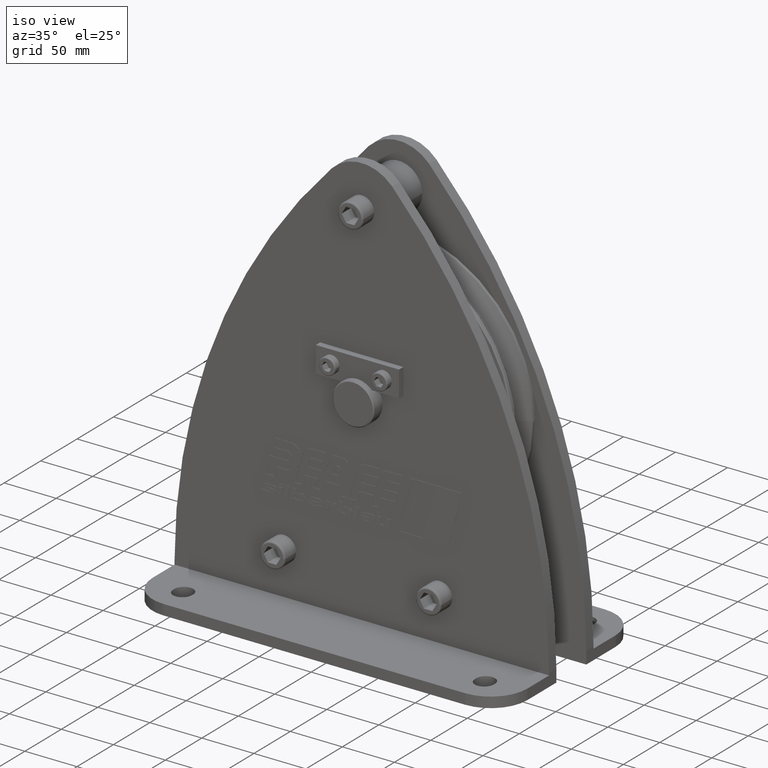
[diagram: clean part render]
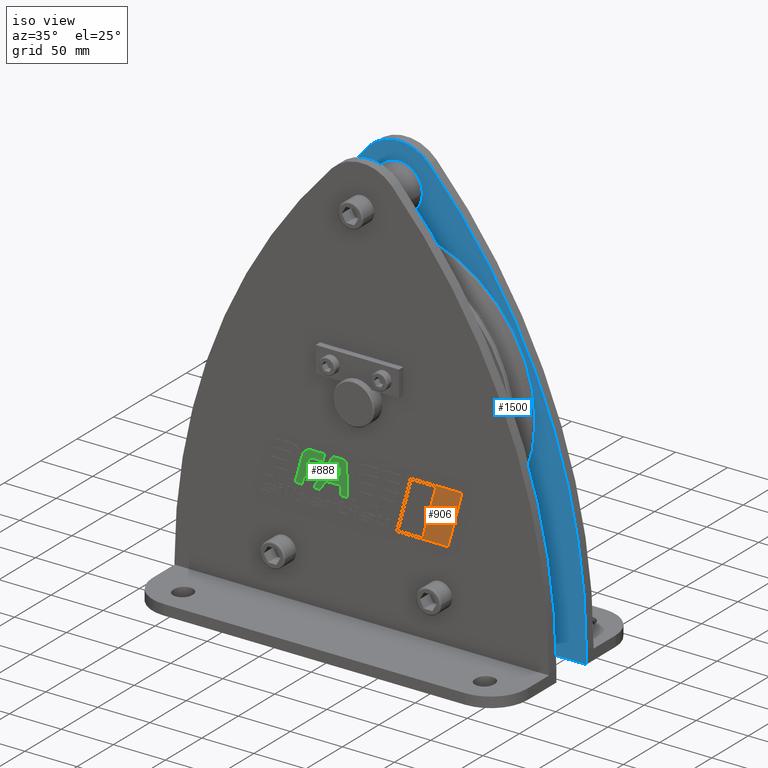
[diagram: same view with three faces highlighted in distinct colors, each labeled with its STEP entity id]
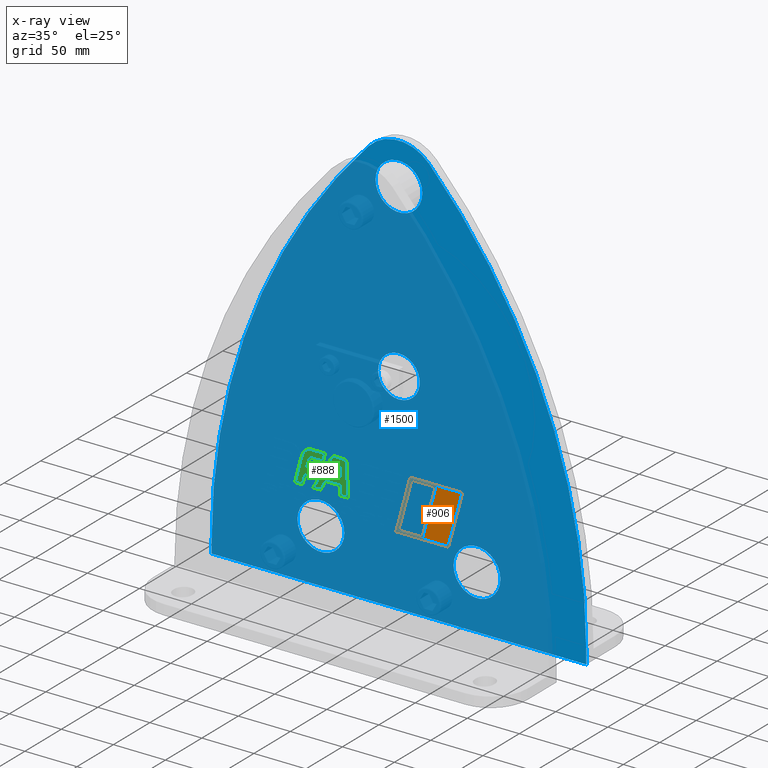
[diagram: x-ray of the same camera — body ghosted, the three highlighted faces saturated]
A machine part, iso view with three faces highlighted in distinct colors.
The next image is the same camera in x-ray (body ghosted, the three faces saturated) — at least one of them is partly hidden behind the body in this view.
Their STEP definitions:

[orange] entity #906 — the highlighted planar face has unit normal (0, -1, 0).
#906=ADVANCED_FACE('',(#2354,#2355),#2356,.T.);
#2354=FACE_OUTER_BOUND('',#4426,.T.);
#2355=FACE_BOUND('',#4427,.T.);
#2356=PLANE('',#4428);
#4426=EDGE_LOOP('',(#7261,#7262,#7263,#7264));
#4427=EDGE_LOOP('',(#7265,#7266,#7267,#7268));
#4428=AXIS2_PLACEMENT_3D('',#7269,#7270,#7271);
#7261=ORIENTED_EDGE('',*,*,#12959,.F.);
#7262=ORIENTED_EDGE('',*,*,#12972,.F.);
#7263=ORIENTED_EDGE('',*,*,#12968,.F.);
#7264=ORIENTED_EDGE('',*,*,#12964,.F.);
#7265=ORIENTED_EDGE('',*,*,#12943,.T.);
#7266=ORIENTED_EDGE('',*,*,#12948,.T.);
#7267=ORIENTED_EDGE('',*,*,#12952,.T.);
#7268=ORIENTED_EDGE('',*,*,#12956,.T.);
#7269=CARTESIAN_POINT('',(64.955972896717,-30.7,-80.9993225368352));
#7270=DIRECTION('',(0.0,-1.0,0.0));
#7271=DIRECTION('',(1.0,0.0,0.0));
#12943=EDGE_CURVE('',#15803,#15804,#15805,.T.);
#12948=EDGE_CURVE('',#15804,#15812,#15813,.T.);
#12952=EDGE_CURVE('',#15812,#15818,#15819,.T.);
#12956=EDGE_CURVE('',#15818,#15803,#15824,.T.);
#12959=EDGE_CURVE('',#15827,#15828,#15829,.T.);
#12964=EDGE_CURVE('',#15828,#15836,#15837,.T.);
#12968=EDGE_CURVE('',#15836,#15842,#15843,.T.);
#12972=EDGE_CURVE('',#15842,#15827,#15848,.T.);
#15803=VERTEX_POINT('',#23363);
#15804=VERTEX_POINT('',#23364);
#15805=LINE('',#23365,#23366);
#15812=VERTEX_POINT('',#23376);
#15813=LINE('',#23377,#23378);
#15818=VERTEX_POINT('',#23385);
#15819=LINE('',#23386,#23387);
#15824=LINE('',#23394,#23395);
#15827=VERTEX_POINT('',#23399);
#15828=VERTEX_POINT('',#23400);
#15829=LINE('',#23401,#23402);
#15836=VERTEX_POINT('',#23412);
#15837=LINE('',#23413,#23414);
#15842=VERTEX_POINT('',#23421);
#15843=LINE('',#23422,#23423);
#15848=LINE('',#23430,#23431);
#23363=CARTESIAN_POINT('',(71.3429207187478,-30.7,-57.1629090736707));
#23364=CARTESIAN_POINT('',(58.5690250746847,-30.7,-104.835736));
#23365=CARTESIAN_POINT('',(71.3429207187478,-30.7,-57.1629090736707));
#23366=VECTOR('',#29005,49.354542213186);
#23376=CARTESIAN_POINT('',(35.0314213346578,-30.7,-104.835736));
#23377=CARTESIAN_POINT('',(58.5690250746847,-30.7,-104.835736));
#23378=VECTOR('',#29009,23.5376037400269);
#23385=CARTESIAN_POINT('',(47.8053169787208,-30.7,-57.1629090736705));
#23386=CARTESIAN_POINT('',(35.0314213346578,-30.7,-104.835736));
#23387=VECTOR('',#29012,49.3545422131862);
#23394=CARTESIAN_POINT('',(47.8053169787208,-30.7,-57.1629090736705));
#23395=VECTOR('',#29015,23.537603740027);
#23399=CARTESIAN_POINT('',(96.3978228494341,-30.7,-55.9986450736705));
#23400=CARTESIAN_POINT('',(83.0,-30.7,-106.0));
#23401=CARTESIAN_POINT('',(96.3978228494341,-30.7,-55.9986450736705));
#23402=VECTOR('',#29017,51.7652117891311);
#23412=CARTESIAN_POINT('',(33.5141229439998,-30.7,-106.0));
#23413=CARTESIAN_POINT('',(83.0,-30.7,-106.0));
#23414=VECTOR('',#29021,49.4858770560002);
#23421=CARTESIAN_POINT('',(46.9119457934339,-30.7,-55.9986450736705));
#23422=CARTESIAN_POINT('',(33.5141229439998,-30.7,-106.0));
#23423=VECTOR('',#29024,51.7652117891311);
#23430=CARTESIAN_POINT('',(46.9119457934339,-30.7,-55.9986450736705));
#23431=VECTOR('',#29027,49.4858770560001);
#29005=DIRECTION('',(-0.258819048283064,-0.0,-0.965925825436844));
#29009=DIRECTION('',(-1.0,0.0,0.0));
#29012=DIRECTION('',(0.258819048283062,0.0,0.965925825436845));
#29015=DIRECTION('',(1.0,0.0,0.0));
#29017=DIRECTION('',(-0.258819048283062,-0.0,-0.965925825436845));
#29021=DIRECTION('',(-1.0,0.0,0.0));
#29024=DIRECTION('',(0.258819048283062,0.0,0.965925825436845));
#29027=DIRECTION('',(1.0,0.0,0.0));

[blue] entity #1500 — the highlighted planar face has unit normal (0, 1, 0).
#1500=ADVANCED_FACE('',(#3279,#3280,#3281,#3282,#3283),#3284,.F.);
#3279=FACE_BOUND('',#5351,.T.);
#3280=FACE_BOUND('',#5352,.T.);
#3281=FACE_BOUND('',#5353,.T.);
#3282=FACE_BOUND('',#5354,.T.);
#3283=FACE_OUTER_BOUND('',#5355,.T.);
#3284=PLANE('',#5356);
#5351=EDGE_LOOP('',(#10089,#10090));
#5352=EDGE_LOOP('',(#10091,#10092));
#5353=EDGE_LOOP('',(#10093,#10094));
#5354=EDGE_LOOP('',(#10095,#10096,#10097));
#5355=EDGE_LOOP('',(#10098,#10099,#10100,#10101,#10102,#10103));
#5356=AXIS2_PLACEMENT_3D('',#10104,#10105,#10106);
#10089=ORIENTED_EDGE('',*,*,#14075,.T.);
#10090=ORIENTED_EDGE('',*,*,#12831,.T.);
#10091=ORIENTED_EDGE('',*,*,#14076,.T.);
#10092=ORIENTED_EDGE('',*,*,#12836,.T.);
#10093=ORIENTED_EDGE('',*,*,#14077,.T.);
#10094=ORIENTED_EDGE('',*,*,#12841,.T.);
#10095=ORIENTED_EDGE('',*,*,#12504,.T.);
#10096=ORIENTED_EDGE('',*,*,#14078,.T.);
#10097=ORIENTED_EDGE('',*,*,#12505,.T.);
#10098=ORIENTED_EDGE('',*,*,#14079,.F.);
#10099=ORIENTED_EDGE('',*,*,#14080,.F.);
#10100=ORIENTED_EDGE('',*,*,#14081,.F.);
#10101=ORIENTED_EDGE('',*,*,#14082,.F.);
#10102=ORIENTED_EDGE('',*,*,#14083,.F.);
#10103=ORIENTED_EDGE('',*,*,#14084,.F.);
#10104=CARTESIAN_POINT('',(-1.06175305339693E-012,20.5,-43.4930480133687));
#10105=DIRECTION('',(0.0,1.0,0.0));
#10106=DIRECTION('',(-1.0,0.0,0.0));
#12504=EDGE_CURVE('',#15077,#15075,#15078,.T.);
#12505=EDGE_CURVE('',#15071,#15077,#15079,.T.);
#12831=EDGE_CURVE('',#15619,#15616,#15620,.T.);
#12836=EDGE_CURVE('',#15628,#15625,#15629,.T.);
#12841=EDGE_CURVE('',#15637,#15634,#15638,.T.);
#14075=EDGE_CURVE('',#15616,#15619,#17476,.T.);
#14076=EDGE_CURVE('',#15625,#15628,#17477,.T.);
#14077=EDGE_CURVE('',#15634,#15637,#17478,.T.);
#14078=EDGE_CURVE('',#15075,#15071,#17479,.T.);
#14079=EDGE_CURVE('',#17480,#17481,#17482,.T.);
#14080=EDGE_CURVE('',#17483,#17480,#17484,.T.);
#14081=EDGE_CURVE('',#17485,#17483,#17486,.T.);
#14082=EDGE_CURVE('',#17487,#17485,#17488,.T.);
#14083=EDGE_CURVE('',#17489,#17487,#17490,.T.);
#14084=EDGE_CURVE('',#17481,#17489,#17491,.T.);
#15071=VERTEX_POINT('',#20230);
#15075=VERTEX_POINT('',#20235);
#15077=VERTEX_POINT('',#20238);
#15078=CIRCLE('',#20239,20.0);
#15079=CIRCLE('',#20240,20.0);
#15616=VERTEX_POINT('',#23122);
#15619=VERTEX_POINT('',#23126);
#15620=CIRCLE('',#23127,22.5);
#15625=VERTEX_POINT('',#23133);
#15628=VERTEX_POINT('',#23137);
#15629=CIRCLE('',#23138,22.5);
#15634=VERTEX_POINT('',#23144);
#15637=VERTEX_POINT('',#23148);
#15638=CIRCLE('',#23149,22.5);
#17476=CIRCLE('',#25648,22.5);
#17477=CIRCLE('',#25649,22.5);
#17478=CIRCLE('',#25650,22.5);
#17479=CIRCLE('',#25651,20.0);
#17480=VERTEX_POINT('',#25652);
#17481=VERTEX_POINT('',#25653);
#17482=CIRCLE('',#25654,560.0000000403);
#17483=VERTEX_POINT('',#25655);
#17484=LINE('',#25656,#25657);
#17485=VERTEX_POINT('',#25658);
#17486=LINE('',#25659,#25660);
#17487=VERTEX_POINT('',#25661);
#17488=LINE('',#25662,#25663);
#17489=VERTEX_POINT('',#25664);
#17490=CIRCLE('',#25665,560.0000000403);
#17491=CIRCLE('',#25666,39.999999989);
#20230=CARTESIAN_POINT('',(2.44929359829471E-015,20.5,-20.0));
#20235=CARTESIAN_POINT('',(-2.44929359829471E-015,20.5,20.0));
#20238=CARTESIAN_POINT('',(-20.0,20.5,0.0));
#20239=AXIS2_PLACEMENT_3D('',#28409,#28410,#28411);
#20240=AXIS2_PLACEMENT_3D('',#28412,#28413,#28414);
#23122=CARTESIAN_POINT('',(-52.5,20.5,-150.0));
#23126=CARTESIAN_POINT('',(-97.5,20.5,-150.0));
#23127=AXIS2_PLACEMENT_3D('',#28844,#28845,#28846);
#23133=CARTESIAN_POINT('',(97.5,20.5,-150.0));
#23137=CARTESIAN_POINT('',(52.5,20.5,-150.0));
#23138=AXIS2_PLACEMENT_3D('',#28852,#28853,#28854);
#23144=CARTESIAN_POINT('',(22.5,20.5,165.0));
#23148=CARTESIAN_POINT('',(-22.5,20.5,165.0));
#23149=AXIS2_PLACEMENT_3D('',#28860,#28861,#28862);
#25648=AXIS2_PLACEMENT_3D('',#30262,#30263,#30264);
#25649=AXIS2_PLACEMENT_3D('',#30265,#30266,#30267);
#25650=AXIS2_PLACEMENT_3D('',#30268,#30269,#30270);
#25651=AXIS2_PLACEMENT_3D('',#30271,#30272,#30273);
#25652=CARTESIAN_POINT('',(-180.0,20.5,-190.000000000384));
#25653=CARTESIAN_POINT('',(-29.2307692301696,20.5,192.269770599819));
#25654=AXIS2_PLACEMENT_3D('',#30274,#30275,#30276);
#25655=CARTESIAN_POINT('',(-180.0,20.5,-202.0));
#25656=CARTESIAN_POINT('',(-180.0,20.5,-202.0));
#25657=VECTOR('',#30277,1.0);
#25658=CARTESIAN_POINT('',(180.0,20.5,-202.0));
#25659=CARTESIAN_POINT('',(180.0,20.5,-202.0));
#25660=VECTOR('',#30278,1.0);
#25661=CARTESIAN_POINT('',(179.999999999999,20.5,-190.000000000384));
#25662=CARTESIAN_POINT('',(180.0,20.5,-190.0));
#25663=VECTOR('',#30279,1.0);
#25664=CARTESIAN_POINT('',(29.2307692300395,20.5,192.269770599973));
#25665=AXIS2_PLACEMENT_3D('',#30280,#30281,#30282);
#25666=AXIS2_PLACEMENT_3D('',#30283,#30284,#30285);
#28409=CARTESIAN_POINT('',(0.0,20.5,0.0));
#28410=DIRECTION('',(0.0,1.0,0.0));
#28411=DIRECTION('',(-1.0,0.0,0.0));
#28412=CARTESIAN_POINT('',(0.0,20.5,0.0));
#28413=DIRECTION('',(0.0,1.0,0.0));
#28414=DIRECTION('',(-1.0,0.0,0.0));
#28844=CARTESIAN_POINT('',(-75.0,20.5,-150.0));
#28845=DIRECTION('',(-0.0,1.0,0.0));
#28846=DIRECTION('',(1.0,0.0,0.0));
#28852=CARTESIAN_POINT('',(75.0,20.5,-150.0));
#28853=DIRECTION('',(-0.0,1.0,0.0));
#28854=DIRECTION('',(1.0,0.0,0.0));
#28860=CARTESIAN_POINT('',(0.0,20.5,165.0));
#28861=DIRECTION('',(-0.0,1.0,0.0));
#28862=DIRECTION('',(1.0,0.0,0.0));
#30262=CARTESIAN_POINT('',(-75.0,20.5,-150.0));
#30263=DIRECTION('',(-0.0,1.0,0.0));
#30264=DIRECTION('',(1.0,0.0,0.0));
#30265=CARTESIAN_POINT('',(75.0,20.5,-150.0));
#30266=DIRECTION('',(-0.0,1.0,0.0));
#30267=DIRECTION('',(1.0,0.0,0.0));
#30268=CARTESIAN_POINT('',(0.0,20.5,165.0));
#30269=DIRECTION('',(-0.0,1.0,0.0));
#30270=DIRECTION('',(1.0,0.0,0.0));
#30271=CARTESIAN_POINT('',(0.0,20.5,0.0));
#30272=DIRECTION('',(0.0,1.0,0.0));
#30273=DIRECTION('',(-1.0,0.0,0.0));
#30274=CARTESIAN_POINT('',(380.0000000403,20.5,-190.000000017));
#30275=DIRECTION('',(0.0,1.0,0.0));
#30276=DIRECTION('',(-1.0,0.0,2.96706912985774E-011));
#30277=DIRECTION('',(0.0,0.0,1.0));
#30278=DIRECTION('',(-1.0,0.0,0.0));
#30279=DIRECTION('',(0.0,0.0,-1.0));
#30280=CARTESIAN_POINT('',(-380.0000000403,20.5,-190.000000016999));
#30281=DIRECTION('',(-0.0,1.0,0.0));
#30282=DIRECTION('',(0.730769230787535,0.0,0.682624590338052));
#30283=CARTESIAN_POINT('',(-1.77635683940025E-014,20.5,164.964787001));
#30284=DIRECTION('',(0.0,1.0,0.0));
#30285=DIRECTION('',(-0.730769230951949,0.0,0.682624590162042));

[green] entity #888 — the highlighted planar face has unit normal (0, -1, 0).
#888=ADVANCED_FACE('',(#2326,#2327),#2328,.T.);
#2326=FACE_BOUND('',#4398,.T.);
#2327=FACE_OUTER_BOUND('',#4399,.T.);
#2328=PLANE('',#4400);
#4398=EDGE_LOOP('',(#7164,#7165,#7166,#7167,#7168,#7169,#7170));
#4399=EDGE_LOOP('',(#7171,#7172,#7173,#7174,#7175,#7176,#7177,#7178,#7179,#7180,#7181,#7182,#7183,#7184,#7185,#7186,#7187,#7188,#7189,#7190,#7191,#7192));
#4400=AXIS2_PLACEMENT_3D('',#7193,#7194,#7195);
#7164=ORIENTED_EDGE('',*,*,#12893,.T.);
#7165=ORIENTED_EDGE('',*,*,#12898,.T.);
#7166=ORIENTED_EDGE('',*,*,#12902,.T.);
#7167=ORIENTED_EDGE('',*,*,#12906,.T.);
#7168=ORIENTED_EDGE('',*,*,#12910,.T.);
#7169=ORIENTED_EDGE('',*,*,#12914,.T.);
#7170=ORIENTED_EDGE('',*,*,#12917,.T.);
#7171=ORIENTED_EDGE('',*,*,#12920,.T.);
#7172=ORIENTED_EDGE('',*,*,#12921,.T.);
#7173=ORIENTED_EDGE('',*,*,#12922,.T.);
#7174=ORIENTED_EDGE('',*,*,#12923,.T.);
#7175=ORIENTED_EDGE('',*,*,#12924,.T.);
#7176=ORIENTED_EDGE('',*,*,#12925,.T.);
#7177=ORIENTED_EDGE('',*,*,#12926,.T.);
#7178=ORIENTED_EDGE('',*,*,#12927,.T.);
#7179=ORIENTED_EDGE('',*,*,#12928,.T.);
#7180=ORIENTED_EDGE('',*,*,#12929,.T.);
#7181=ORIENTED_EDGE('',*,*,#12930,.T.);
#7182=ORIENTED_EDGE('',*,*,#12931,.T.);
#7183=ORIENTED_EDGE('',*,*,#12932,.T.);
#7184=ORIENTED_EDGE('',*,*,#12933,.T.);
#7185=ORIENTED_EDGE('',*,*,#12934,.T.);
#7186=ORIENTED_EDGE('',*,*,#12935,.T.);
#7187=ORIENTED_EDGE('',*,*,#12936,.T.);
#7188=ORIENTED_EDGE('',*,*,#12937,.T.);
#7189=ORIENTED_EDGE('',*,*,#12938,.T.);
#7190=ORIENTED_EDGE('',*,*,#12939,.T.);
#7191=ORIENTED_EDGE('',*,*,#12940,.T.);
#7192=ORIENTED_EDGE('',*,*,#12941,.T.);
#7193=CARTESIAN_POINT('',(1.05537800720867E-012,-30.5,-43.4930480133687));
#7194=DIRECTION('',(0.0,-1.0,0.0));
#7195=DIRECTION('',(1.0,0.0,0.0));
#12893=EDGE_CURVE('',#15720,#15718,#15721,.T.);
#12898=EDGE_CURVE('',#15718,#15726,#15728,.T.);
#12902=EDGE_CURVE('',#15726,#15732,#15734,.T.);
#12906=EDGE_CURVE('',#15732,#15738,#15740,.T.);
#12910=EDGE_CURVE('',#15738,#15744,#15746,.T.);
#12914=EDGE_CURVE('',#15744,#15750,#15752,.T.);
#12917=EDGE_CURVE('',#15750,#15720,#15755,.T.);
#12920=EDGE_CURVE('',#15758,#15759,#15760,.T.);
#12921=EDGE_CURVE('',#15759,#15761,#15762,.T.);
#12922=EDGE_CURVE('',#15761,#15763,#15764,.T.);
#12923=EDGE_CURVE('',#15763,#15765,#15766,.T.);
#12924=EDGE_CURVE('',#15765,#15767,#15768,.T.);
#12925=EDGE_CURVE('',#15767,#15769,#15770,.T.);
#12926=EDGE_CURVE('',#15769,#15771,#15772,.T.);
#12927=EDGE_CURVE('',#15771,#15773,#15774,.T.);
#12928=EDGE_CURVE('',#15773,#15775,#15776,.T.);
#12929=EDGE_CURVE('',#15775,#15777,#15778,.T.);
#12930=EDGE_CURVE('',#15777,#15779,#15780,.T.);
#12931=EDGE_CURVE('',#15779,#15781,#15782,.T.);
#12932=EDGE_CURVE('',#15781,#15783,#15784,.T.);
#12933=EDGE_CURVE('',#15783,#15785,#15786,.T.);
#12934=EDGE_CURVE('',#15785,#15787,#15788,.T.);
#12935=EDGE_CURVE('',#15787,#15789,#15790,.T.);
#12936=EDGE_CURVE('',#15789,#15791,#15792,.T.);
#12937=EDGE_CURVE('',#15791,#15793,#15794,.T.);
#12938=EDGE_CURVE('',#15793,#15795,#15796,.T.);
#12939=EDGE_CURVE('',#15795,#15797,#15798,.T.);
#12940=EDGE_CURVE('',#15797,#15799,#15800,.T.);
#12941=EDGE_CURVE('',#15799,#15758,#15801,.T.);
#15718=VERTEX_POINT('',#23247);
#15720=VERTEX_POINT('',#23250);
#15721=CIRCLE('',#23251,2.968436601);
#15726=VERTEX_POINT('',#23258);
#15728=LINE('',#23261,#23262);
#15732=VERTEX_POINT('',#23266);
#15734=CIRCLE('',#23269,0.056);
#15738=VERTEX_POINT('',#23274);
#15740=LINE('',#23277,#23278);
#15744=VERTEX_POINT('',#23282);
#15746=CIRCLE('',#23285,0.056);
#15750=VERTEX_POINT('',#23290);
#15752=LINE('',#23293,#23294);
#15755=CIRCLE('',#23297,2.968436601);
#15758=VERTEX_POINT('',#23300);
#15759=VERTEX_POINT('',#23301);
#15760=CIRCLE('',#23302,3.73277588666172);
#15761=VERTEX_POINT('',#23303);
#15762=LINE('',#23304,#23305);
#15763=VERTEX_POINT('',#23306);
#15764=CIRCLE('',#23307,3.732775917);
#15765=VERTEX_POINT('',#23308);
#15766=LINE('',#23309,#23310);
#15767=VERTEX_POINT('',#23311);
#15768=LINE('',#23312,#23313);
#15769=VERTEX_POINT('',#23314);
#15770=LINE('',#23315,#23316);
#15771=VERTEX_POINT('',#23317);
#15772=CIRCLE('',#23318,3.7932012186);
#15773=VERTEX_POINT('',#23319);
#15774=LINE('',#23320,#23321);
#15775=VERTEX_POINT('',#23322);
#15776=LINE('',#23323,#23324);
#15777=VERTEX_POINT('',#23325);
#15778=LINE('',#23326,#23327);
#15779=VERTEX_POINT('',#23328);
#15780=CIRCLE('',#23329,9.918510549);
#15781=VERTEX_POINT('',#23330);
#15782=LINE('',#23331,#23332);
#15783=VERTEX_POINT('',#23333);
#15784=LINE('',#23334,#23335);
#15785=VERTEX_POINT('',#23336);
#15786=LINE('',#23337,#23338);
#15787=VERTEX_POINT('',#23339);
#15788=LINE('',#23340,#23341);
#15789=VERTEX_POINT('',#23342);
#15790=LINE('',#23343,#23344);
#15791=VERTEX_POINT('',#23345);
#15792=LINE('',#23346,#23347);
#15793=VERTEX_POINT('',#23348);
#15794=LINE('',#23349,#23350);
#15795=VERTEX_POINT('',#23351);
#15796=LINE('',#23352,#23353);
#15797=VERTEX_POINT('',#23354);
#15798=LINE('',#23355,#23356);
#15799=VERTEX_POINT('',#23357);
#15800=LINE('',#23358,#23359);
#15801=LINE('',#23360,#23361);
#23247=CARTESIAN_POINT('',(-20.482363013948,-30.5,-67.0814196226911));
#23250=CARTESIAN_POINT('',(-23.4418159959375,-30.5,-64.1129971439468));
#23251=AXIS2_PLACEMENT_3D('',#28942,#28943,#28944);
#23258=CARTESIAN_POINT('',(-20.482363013948,-30.5,-73.5988748338482));
#23261=CARTESIAN_POINT('',(-20.482363013948,-30.5,-55.2872338180299));
#23262=VECTOR('',#28948,1.0);
#23266=CARTESIAN_POINT('',(-20.538363013948,-30.5,-73.6548748338482));
#23269=AXIS2_PLACEMENT_3D('',#28953,#28954,#28955);
#23274=CARTESIAN_POINT('',(-30.5964810240869,-30.5,-73.6548748338482));
#23277=CARTESIAN_POINT('',(-10.2691815069735,-30.5,-73.6548748338482));
#23278=VECTOR('',#28958,1.0);
#23282=CARTESIAN_POINT('',(-30.6448788213068,-30.5,-73.5707029822182));
#23285=AXIS2_PLACEMENT_3D('',#28963,#28964,#28965);
#23290=CARTESIAN_POINT('',(-25.9982843326739,-30.5,-65.5880918007529));
#23293=CARTESIAN_POINT('',(-20.2285916947525,-30.5,-55.6760555604999));
#23294=VECTOR('',#28968,1.0);
#23297=AXIS2_PLACEMENT_3D('',#28972,#28973,#28974);
#23300=CARTESIAN_POINT('',(-14.4208940526642,-30.5,-60.7843084361876));
#23301=CARTESIAN_POINT('',(-18.1520079729303,-30.5,-57.1629090912202));
#23302=AXIS2_PLACEMENT_3D('',#28975,#28976,#28977);
#23303=CARTESIAN_POINT('',(-25.5320870312578,-30.5,-57.1629090912202));
#23304=CARTESIAN_POINT('',(-12.7660435156284,-30.5,-57.1629090912202));
#23305=VECTOR('',#28978,1.0);
#23306=CARTESIAN_POINT('',(-28.7581251011482,-30.5,-59.0178419854536));
#23307=AXIS2_PLACEMENT_3D('',#28979,#28980,#28981);
#23308=CARTESIAN_POINT('',(-37.2801253888532,-30.5,-73.6582014430654));
#23309=CARTESIAN_POINT('',(-26.005198872945,-30.5,-54.2884559046612));
#23310=VECTOR('',#28982,1.0);
#23311=CARTESIAN_POINT('',(-52.9702312195235,-30.5,-73.6582014430654));
#23312=CARTESIAN_POINT('',(-26.4851156097612,-30.5,-73.6582014430654));
#23313=VECTOR('',#28983,1.0);
#23314=CARTESIAN_POINT('',(-51.165923024384,-30.5,-66.9244314943136));
#23315=CARTESIAN_POINT('',(-46.5232666982961,-30.5,-49.5978019666043));
#23316=VECTOR('',#28984,1.0);
#23317=CARTESIAN_POINT('',(-47.5019720117577,-30.5,-64.1129830255764));
#23318=AXIS2_PLACEMENT_3D('',#28985,#28986,#28987);
#23319=CARTESIAN_POINT('',(-37.3976476606581,-30.5,-64.1129830255764));
#23320=CARTESIAN_POINT('',(-18.6988238303285,-30.5,-64.1129830255764));
#23321=VECTOR('',#28988,1.0);
#23322=CARTESIAN_POINT('',(-35.5353809835736,-30.5,-57.1629090775762));
#23323=CARTESIAN_POINT('',(-32.636438819811,-30.5,-46.3439094911853));
#23324=VECTOR('',#28989,1.0);
#23325=CARTESIAN_POINT('',(-47.80752255964,-30.5,-57.162909077576));
#23326=CARTESIAN_POINT('',(-23.9037612798195,-30.5,-57.162909077576));
#23327=VECTOR('',#28990,1.0);
#23328=CARTESIAN_POINT('',(-57.3880680387244,-30.5,-64.5143201283445));
#23329=AXIS2_PLACEMENT_3D('',#28991,#28992,#28993);
#23330=CARTESIAN_POINT('',(-64.0485024119859,-30.5,-89.37139943567));
#23331=CARTESIAN_POINT('',(-56.1684903591378,-30.5,-59.9627942962412));
#23332=VECTOR('',#28994,1.0);
#23333=CARTESIAN_POINT('',(-57.1805700340241,-30.5,-89.37139943567));
#23334=CARTESIAN_POINT('',(-28.5902850170115,-30.5,-89.37139943567));
#23335=VECTOR('',#28995,1.0);
#23336=CARTESIAN_POINT('',(-54.8324979521102,-30.5,-80.6082753736705));
#23337=CARTESIAN_POINT('',(-48.3565538786164,-30.5,-56.4397237471211));
#23338=VECTOR('',#28996,1.0);
#23339=CARTESIAN_POINT('',(-41.3256909154809,-30.5,-80.6082753736705));
#23340=CARTESIAN_POINT('',(-20.6628454577399,-30.5,-80.6082753736705));
#23341=VECTOR('',#28997,1.0);
#23342=CARTESIAN_POINT('',(-46.4266138830984,-30.5,-89.37139943567));
#23343=CARTESIAN_POINT('',(-30.5784431525332,-30.5,-62.1450548801163));
#23344=VECTOR('',#28998,1.0);
#23345=CARTESIAN_POINT('',(-39.8422991980759,-30.5,-89.37139943567));
#23346=CARTESIAN_POINT('',(-19.9211495990374,-30.5,-89.37139943567));
#23347=VECTOR('',#28999,1.0);
#23348=CARTESIAN_POINT('',(-34.7413762304583,-30.5,-80.6082753736705));
#23349=CARTESIAN_POINT('',(-22.2768402494229,-30.5,-59.1948417910648));
#23350=VECTOR('',#29000,1.0);
#23351=CARTESIAN_POINT('',(-20.4823492886712,-30.5,-80.6082753736703));
#23352=CARTESIAN_POINT('',(-10.2411746443351,-30.5,-80.6082753736703));
#23353=VECTOR('',#29001,1.0);
#23354=CARTESIAN_POINT('',(-20.4823492886712,-30.5,-89.371399422881));
#23355=CARTESIAN_POINT('',(-20.4823492886712,-30.5,-66.4322237181248));
#23356=VECTOR('',#29002,1.0);
#23357=CARTESIAN_POINT('',(-13.5675480012595,-30.5,-89.3713994228813));
#23358=CARTESIAN_POINT('',(-6.78377400062923,-30.5,-89.3713994228813));
#23359=VECTOR('',#29003,1.0);
#23360=CARTESIAN_POINT('',(-14.6723235489755,-30.5,-52.3614208210651));
#23361=VECTOR('',#29004,1.0);
#28942=CARTESIAN_POINT('',(-23.450799614948,-30.5,-67.0814196226911));
#28943=DIRECTION('',(0.0,1.0,-0.0));
#28944=DIRECTION('',(-1.0,0.0,0.0));
#28948=DIRECTION('',(0.0,0.0,-1.0));
#28953=CARTESIAN_POINT('',(-20.538363013948,-30.5,-73.5988748338482));
#28954=DIRECTION('',(-0.0,1.0,0.0));
#28955=DIRECTION('',(0.0,0.0,1.0));
#28958=DIRECTION('',(-1.0,-0.0,-0.0));
#28963=CARTESIAN_POINT('',(-30.5964810240869,-30.5,-73.5988748338482));
#28964=DIRECTION('',(-0.0,1.0,0.0));
#28965=DIRECTION('',(0.864246378926872,0.0,-0.503068779106585));
#28968=DIRECTION('',(0.503068779106605,0.0,0.86424637892686));
#28972=CARTESIAN_POINT('',(-23.4328237603198,-30.5,-67.0814195966012));
#28973=DIRECTION('',(-0.0,1.0,0.0));
#28974=DIRECTION('',(0.003087502165646,0.0,-0.999995233653829));
#28975=CARTESIAN_POINT('',(-18.1520079729303,-30.5,-60.8956849778819));
#28976=DIRECTION('',(0.0,-1.0,-0.0));
#28977=DIRECTION('',(-0.999554763948843,0.0,-0.02983745745153));
#28978=DIRECTION('',(-1.0,0.0,0.0));
#28979=CARTESIAN_POINT('',(-25.5320870312578,-30.5,-60.8956850082202));
#28980=DIRECTION('',(0.0,-1.0,0.0));
#28981=DIRECTION('',(0.0,0.0,-1.0));
#28982=DIRECTION('',(-0.503068785832823,-0.0,-0.864246375011599));
#28983=DIRECTION('',(-1.0,0.0,0.0));
#28984=DIRECTION('',(0.258819041804069,0.0,0.965925827172886));
#28985=CARTESIAN_POINT('',(-47.5019720117577,-30.5,-67.9061842441764));
#28986=DIRECTION('',(-0.0,1.0,0.0));
#28987=DIRECTION('',(0.0,0.0,1.0));
#28988=DIRECTION('',(1.0,0.0,0.0));
#28989=DIRECTION('',(0.258819041910183,0.0,0.965925827144453));
#28990=DIRECTION('',(-1.0,0.0,0.0));
#28991=CARTESIAN_POINT('',(-47.80752255964,-30.5,-67.081419626576));
#28992=DIRECTION('',(0.0,-1.0,0.0));
#28993=DIRECTION('',(0.0,0.0,-1.0));
#28994=DIRECTION('',(-0.258819046794494,-0.0,-0.965925825835705));
#28995=DIRECTION('',(1.0,0.0,0.0));
#28996=DIRECTION('',(0.258819051923796,0.0,0.965925824461313));
#28997=DIRECTION('',(1.0,0.0,0.0));
#28998=DIRECTION('',(-0.503068786003664,-0.0,-0.864246374912154));
#28999=DIRECTION('',(1.0,0.0,0.0));
#29000=DIRECTION('',(0.503068786003677,0.0,0.864246374912147));
#29001=DIRECTION('',(1.0,0.0,0.0));
#29002=DIRECTION('',(-0.0,-0.0,-1.0));
#29003=DIRECTION('',(1.0,0.0,0.0));
#29004=DIRECTION('',(-0.029837457451531,0.0,0.999554763948843));